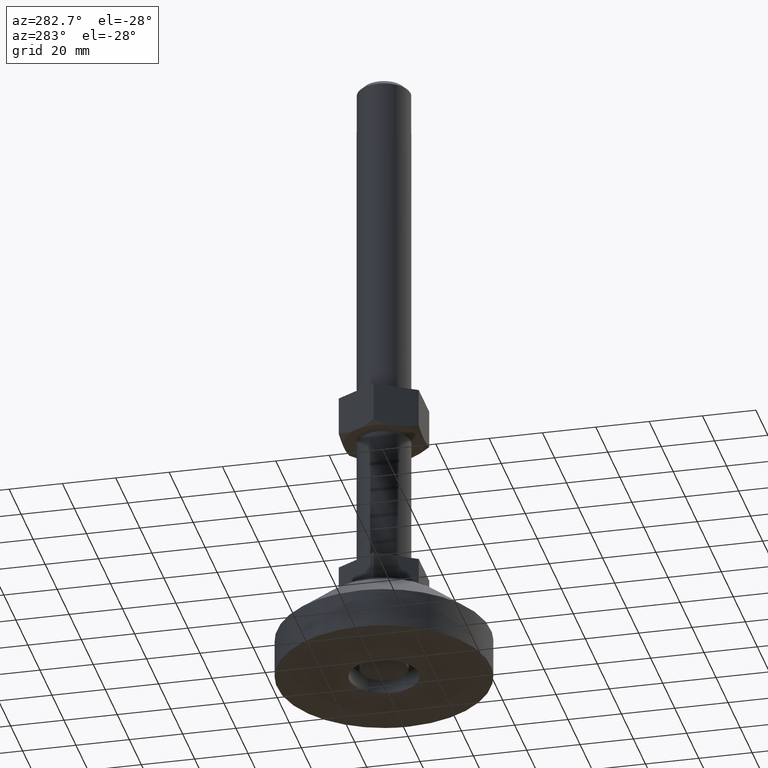
[diagram: clean part render]
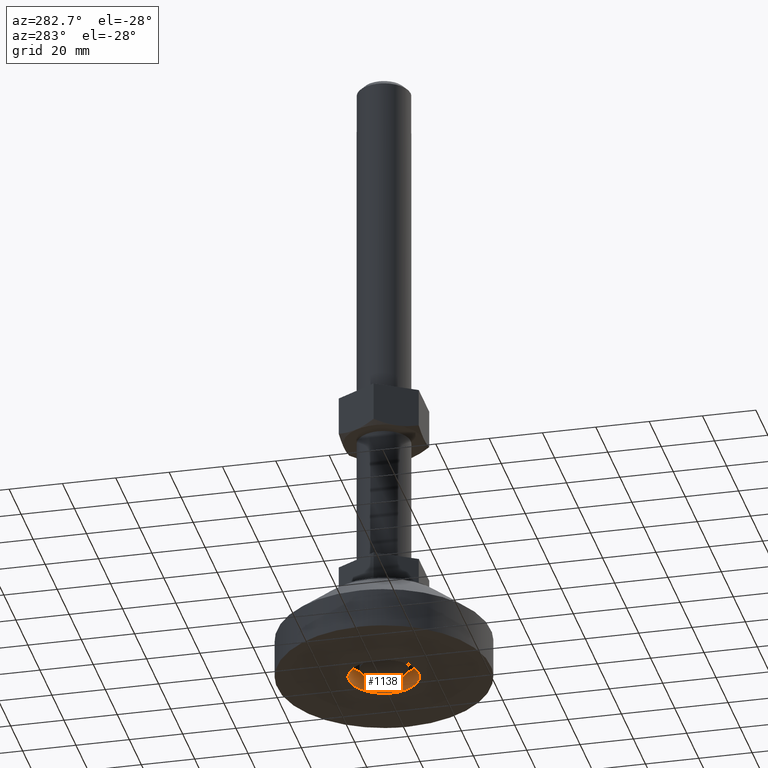
[diagram: same view with one face highlighted and labeled with its STEP entity id]
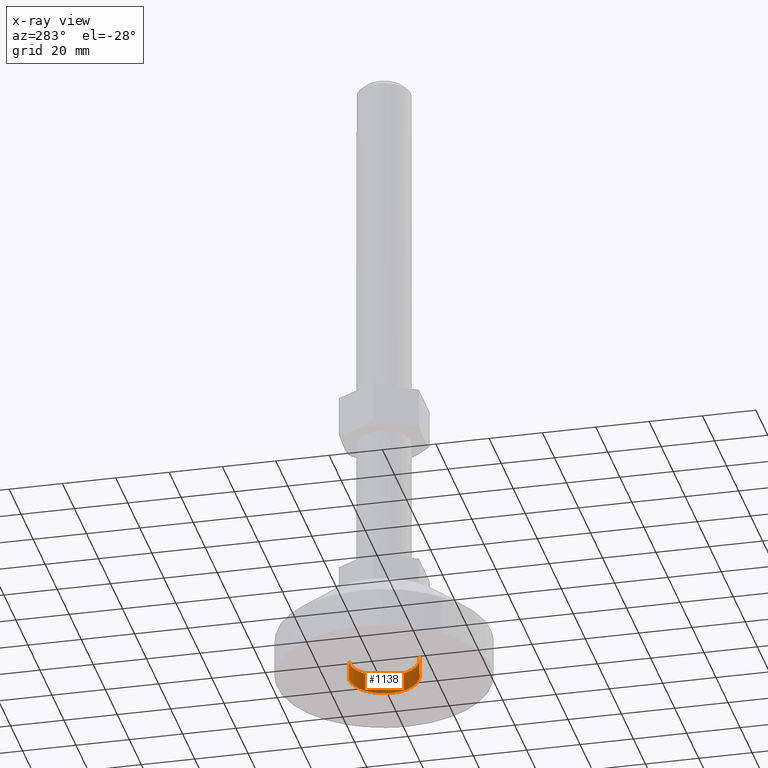
[diagram: x-ray of the same camera — body ghosted, the highlighted face saturated]
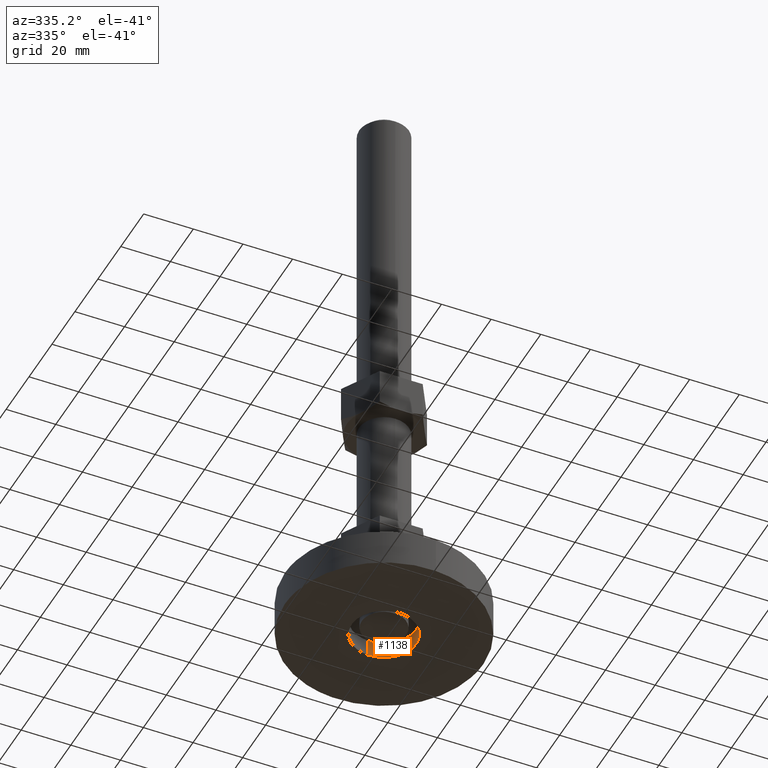
[diagram: same view with one face highlighted and labeled with its STEP entity id]
A machine part, auxiliary view. The second image highlights one B-rep face of the part: STEP entity #1138.
The next image is the same camera in x-ray: the body ghosted, the highlighted face saturated — about 0% of this face is hidden behind the body in this view.
A second angle (auxiliary view) of the same face is appended — the face is thin or edge-on in the first view.
In plain terms, the highlighted face is a freeform B-spline surface patch.
Its self-contained STEP definition (entity closure, byte-faithful):
#944=CARTESIAN_POINT('',(12.999999999999670,-1.705303E-013,7.0));
#945=VERTEX_POINT('',#944);
#946=CARTESIAN_POINT('',(0.793626215129816,-12.975752672991250,7.000000000000001));
#947=VERTEX_POINT('',#946);
#948=CARTESIAN_POINT('',(12.999999999999670,-1.705303E-013,7.0));
#949=CARTESIAN_POINT('',(12.999999999999673,-12.229183400944116,6.999999999999999));
#950=CARTESIAN_POINT('',(0.793626215129872,-12.975752672992138,7.0));
#958=(BOUNDED_CURVE()B_SPLINE_CURVE(2,(#948,#949,#950),.UNSPECIFIED.,.F.,.U.)B_SPLINE_CURVE_WITH_KNOTS((3,3),(0.0,0.239333026054957),.UNSPECIFIED.)CURVE()GEOMETRIC_REPRESENTATION_ITEM()RATIONAL_B_SPLINE_CURVE((1.0,0.719603918521599,0.976072178436622))REPRESENTATION_ITEM(''));
#959=EDGE_CURVE('',#945,#947,#958,.T.);
#978=CARTESIAN_POINT('',(-0.793626215130469,12.975752672990909,7.0));
#979=VERTEX_POINT('',#978);
#993=CARTESIAN_POINT('',(-0.793626215130469,12.975752672990907,7.0));
#994=CARTESIAN_POINT('',(-0.397183516742835,12.999999999999835,7.000000000000001));
#995=CARTESIAN_POINT('',(-3.268497E-013,12.999999999999829,7.0));
#996=CARTESIAN_POINT('',(12.999999999999675,12.999999999999829,6.999999999999999));
#997=CARTESIAN_POINT('',(12.999999999999670,-1.705303E-013,7.0));
#1005=(BOUNDED_CURVE()B_SPLINE_CURVE(2,(#993,#994,#995,#996,#997),.UNSPECIFIED.,.F.,.U.)B_SPLINE_CURVE_WITH_KNOTS((3,2,3),(0.739333026054957,0.750000000000000,1.0),.UNSPECIFIED.)CURVE()GEOMETRIC_REPRESENTATION_ITEM()RATIONAL_B_SPLINE_CURVE((0.976072178436622,0.987502862664949,1.0,0.707106781186547,1.0))REPRESENTATION_ITEM(''));
#1006=EDGE_CURVE('',#979,#945,#1005,.T.);
#1035=CARTESIAN_POINT('',(0.793626155349970,-12.975752676647490,6.322720E-014));
#1036=VERTEX_POINT('',#1035);
#1054=CARTESIAN_POINT('',(-0.793626155350623,12.975752676647151,6.404599E-014));
#1055=VERTEX_POINT('',#1054);
#1069=CARTESIAN_POINT('',(-0.793626215130469,12.975752672990909,7.0));
#1070=CARTESIAN_POINT('',(-0.793626155350623,12.975752676647151,6.404599E-014));
#1071=QUASI_UNIFORM_CURVE('',1,(#1069,#1070),.UNSPECIFIED.,.F.,.U.);
#1072=EDGE_CURVE('',#979,#1055,#1071,.T.);
#1076=CARTESIAN_POINT('',(0.793626215129816,-12.975752672991250,7.000000000000001));
#1077=CARTESIAN_POINT('',(0.793626155349970,-12.975752676647490,6.322720E-014));
#1078=QUASI_UNIFORM_CURVE('',1,(#1076,#1077),.UNSPECIFIED.,.F.,.U.);
#1079=EDGE_CURVE('',#947,#1036,#1078,.T.);
#1084=CARTESIAN_POINT('',(-0.793631013953468,12.975752379484099,7.175000000000001));
#1085=CARTESIAN_POINT('',(12.182121365530799,13.769383393437236,7.175000000000001));
#1086=CARTESIAN_POINT('',(12.975752379483939,0.793631013952970,7.175000000000001));
#1087=CARTESIAN_POINT('',(13.769383393437080,-12.182121365531296,7.175000000000001));
#1088=CARTESIAN_POINT('',(0.793631013952814,-12.975752379484440,7.175000000000001));
#1089=CARTESIAN_POINT('',(-0.793631013953468,12.975752379484099,-0.179375000000000));
#1090=CARTESIAN_POINT('',(12.182121365530799,13.769383393437236,-0.179375000000000));
#1091=CARTESIAN_POINT('',(12.975752379483939,0.793631013952970,-0.179375000000000));
#1092=CARTESIAN_POINT('',(13.769383393437080,-12.182121365531296,-0.179375000000000));
#1093=CARTESIAN_POINT('',(0.793631013952814,-12.975752379484440,-0.179375000000000));
#1101=(BOUNDED_SURFACE()B_SPLINE_SURFACE(2,1,((#1084,#1089),(#1085,#1090),(#1086,#1091),(#1087,#1092),(#1088,#1093)),.UNSPECIFIED.,.F.,.F.,.U.)B_SPLINE_SURFACE_WITH_KNOTS((3,2,3),(2,2),(0.0,21.539105243400940,43.078210486801879),(0.0,7.354375000000001),.UNSPECIFIED.)GEOMETRIC_REPRESENTATION_ITEM()RATIONAL_B_SPLINE_SURFACE(((1.0,1.0),(0.707106781186548,0.707106781186548),(1.0,1.0),(0.707106781186548,0.707106781186548),(1.0,1.0)))REPRESENTATION_ITEM('')SURFACE());
#1102=CARTESIAN_POINT('',(12.999999999999670,-1.705303E-013,0.0));
#1103=VERTEX_POINT('',#1102);
#1104=CARTESIAN_POINT('',(12.999999999999670,-1.705303E-013,0.0));
#1105=CARTESIAN_POINT('',(12.999999999999673,-12.229183457389770,0.0));
#1106=CARTESIAN_POINT('',(0.793626155350024,-12.975752676648403,0.0));
#1114=(BOUNDED_CURVE()B_SPLINE_CURVE(2,(#1104,#1105,#1106),.UNSPECIFIED.,.F.,.U.)B_SPLINE_CURVE_WITH_KNOTS((3,3),(0.0,0.239333026849888),.UNSPECIFIED.)CURVE()GEOMETRIC_REPRESENTATION_ITEM()RATIONAL_B_SPLINE_CURVE((1.0,0.719603917590280,0.976072180140311))REPRESENTATION_ITEM(''));
#1115=EDGE_CURVE('',#1103,#1036,#1114,.T.);
#1116=ORIENTED_EDGE('',*,*,#1115,.T.);
#1117=ORIENTED_EDGE('',*,*,#1079,.F.);
#1118=ORIENTED_EDGE('',*,*,#959,.F.);
#1119=ORIENTED_EDGE('',*,*,#1006,.F.);
#1120=ORIENTED_EDGE('',*,*,#1072,.T.);
#1121=CARTESIAN_POINT('',(-0.793626155350623,12.975752676647151,6.404599E-014));
#1122=CARTESIAN_POINT('',(-0.397183486769104,12.999999999999826,0.0));
#1123=CARTESIAN_POINT('',(-3.268497E-013,12.999999999999829,0.0));
#1124=CARTESIAN_POINT('',(12.999999999999675,12.999999999999829,0.0));
#1125=CARTESIAN_POINT('',(12.999999999999670,-1.705303E-013,0.0));
#1133=(BOUNDED_CURVE()B_SPLINE_CURVE(2,(#1121,#1122,#1123,#1124,#1125),.UNSPECIFIED.,.F.,.U.)B_SPLINE_CURVE_WITH_KNOTS((3,2,3),(0.739333026849888,0.750000000000000,1.0),.UNSPECIFIED.)CURVE()GEOMETRIC_REPRESENTATION_ITEM()RATIONAL_B_SPLINE_CURVE((0.976072180140311,0.987502863596268,1.0,0.707106781186547,1.0))REPRESENTATION_ITEM(''));
#1134=EDGE_CURVE('',#1055,#1103,#1133,.T.);
#1135=ORIENTED_EDGE('',*,*,#1134,.T.);
#1136=EDGE_LOOP('',(#1116,#1117,#1118,#1119,#1120,#1135));
#1137=FACE_OUTER_BOUND('',#1136,.T.);
#1138=ADVANCED_FACE('',(#1137),#1101,.F.);